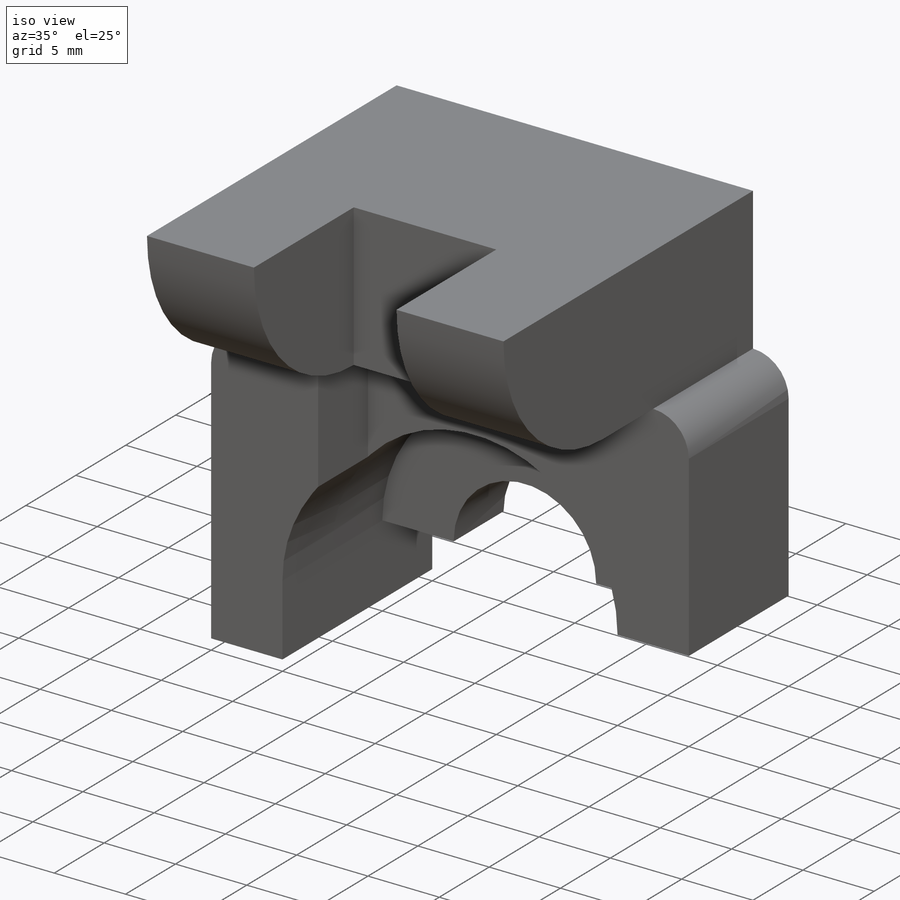
[diagram: iso view]
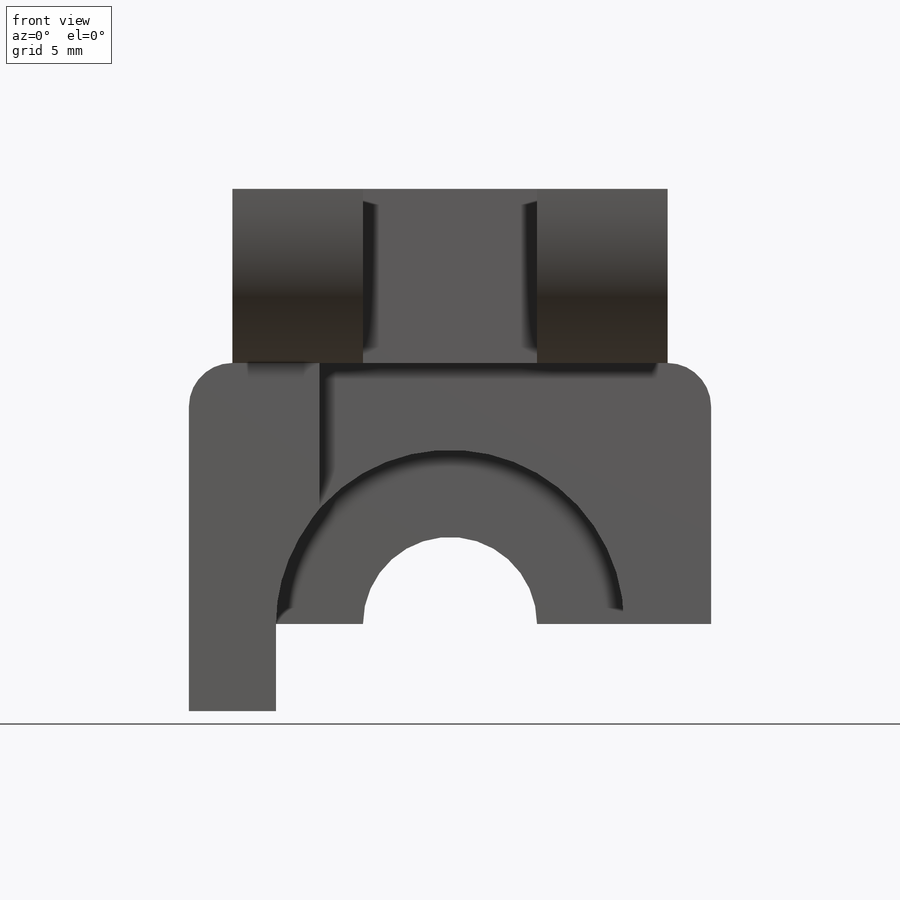
[diagram: front view]
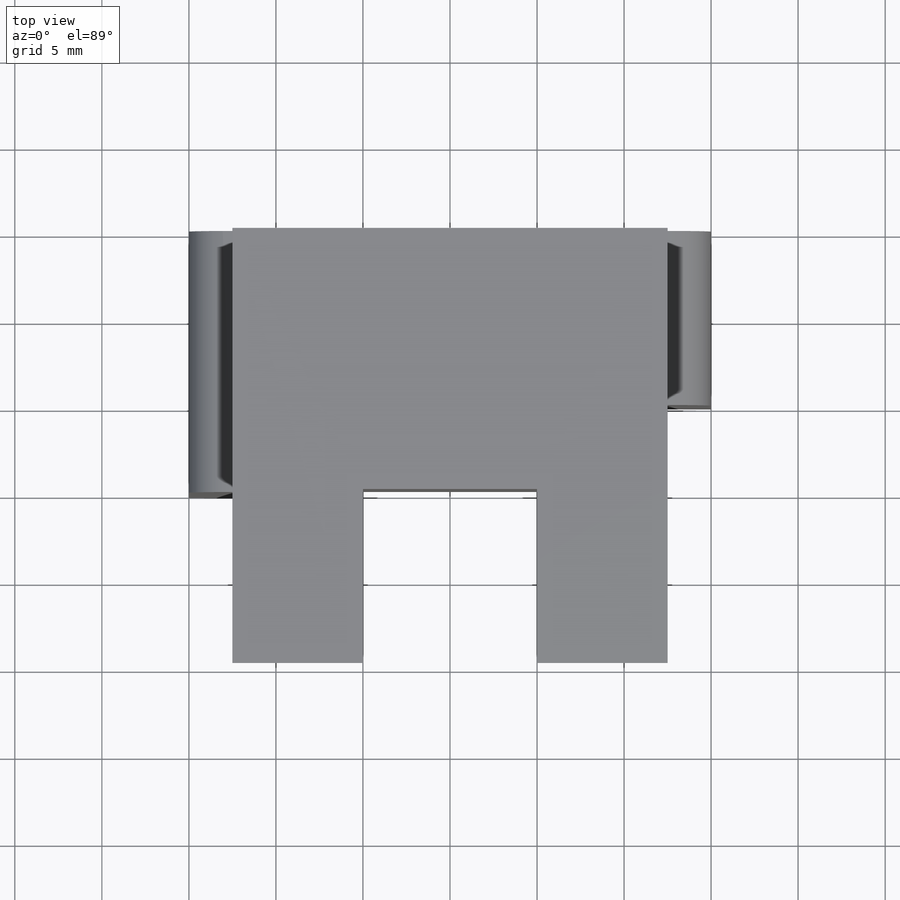
[diagram: top view]
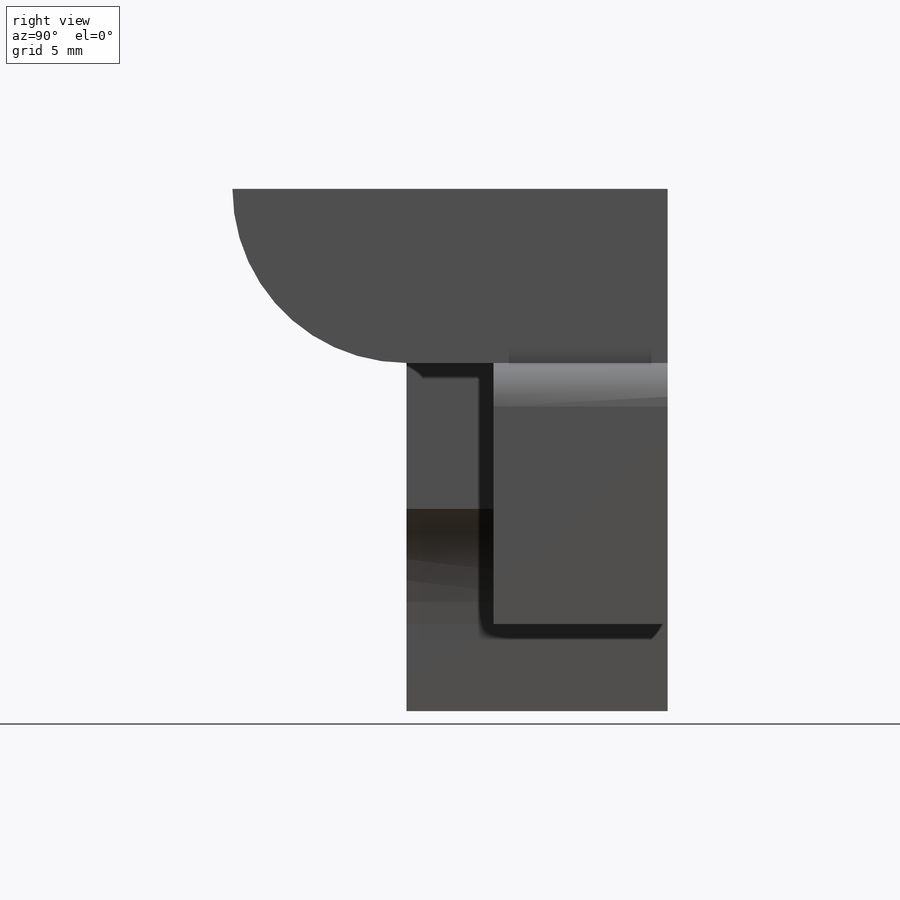
[diagram: right view]
SOLIDWORKS PART (.sldprt)
format: sldprt  version: not decoded by parser v0  size: 205,824 bytes
history: native  units: mm
features: sketch x6, extrude x4, cut_extrude x2, material x1 (+13 scaffold rows collapsed)
feature tree (26):
  scaffold x13  (default folders/planes/origin — collapsed)
  material  "Material <not specified>"
  sketch  "Sketch1"  dims[c1.D1=10.0mm c1.D7=2.5mm c1.D2=5.0mm c1.D3=15.0mm c1.D4=30.0mm c1.D5=20.0mm c1.D6=5.0mm c2.D7=5.0mm]
  extrude  "Boss-Extrude1"  Depth=10mm
  sketch  "Sketch2"  dims[D1=5.0mm D2=5.0mm]
  extrude  "Boss-Extrude2"  Depth=5mm
  sketch  "Sketch9"  dims[D2=2.5mm D1=7.5mm]
  extrude  "Boss-Extrude6"  Depth=5mm
  sketch  "Sketch10"  dims[D1=25.0mm D2=10.0mm]
  extrude  "Boss-Extrude7"  Depth=25mm
  sketch  "Sketch11"  dims[D1=10.0mm D2=10.0mm]
  cut_extrude  "Cut-Extrude4"  [1 undecoded]
  sketch  "Sketch12"  dims[D1=10.0mm D2=10.0mm D3=7.5mm]
  cut_extrude  "Cut-Extrude5"  Depth=25mm
decode coverage: 11 of 12 modeling features carry decoded parameters
note: 1 parameter value undecoded
note: suppression state not decoded; provenance and decode notes live in map.json
